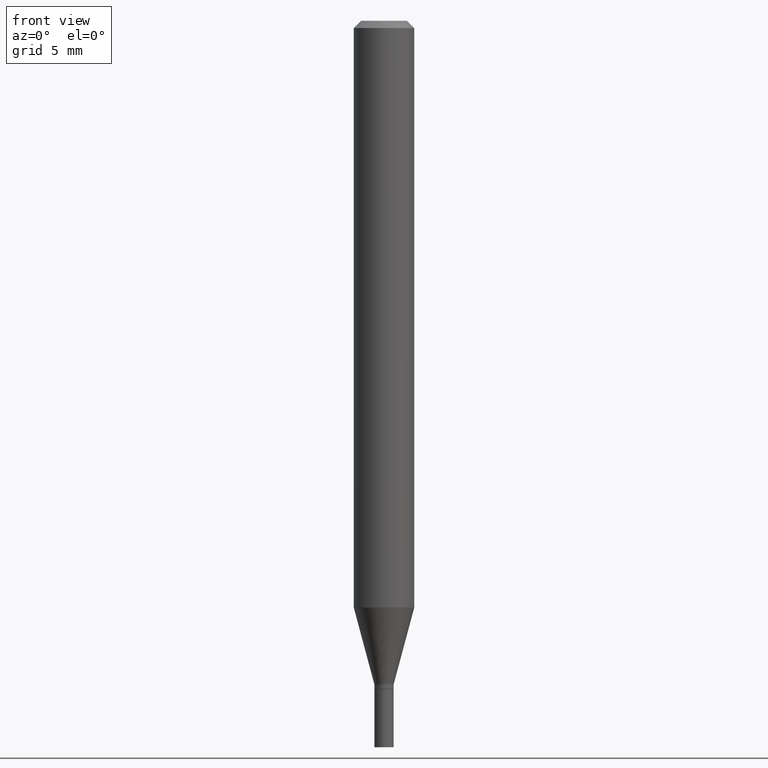
[diagram: clean part render]
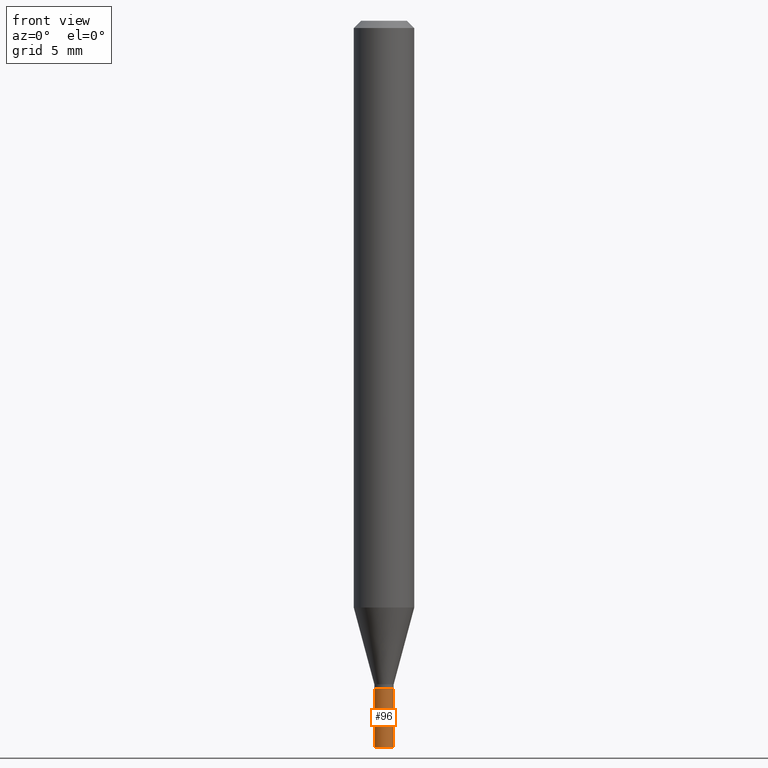
[diagram: same view with one face highlighted and labeled with its STEP entity id]
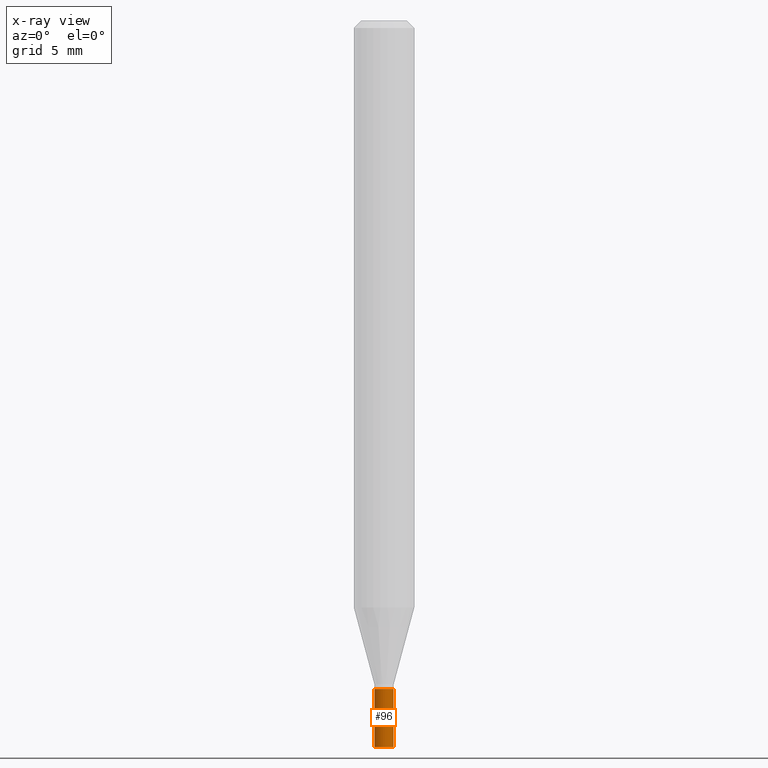
[diagram: x-ray of the same camera — body ghosted, the highlighted face saturated]
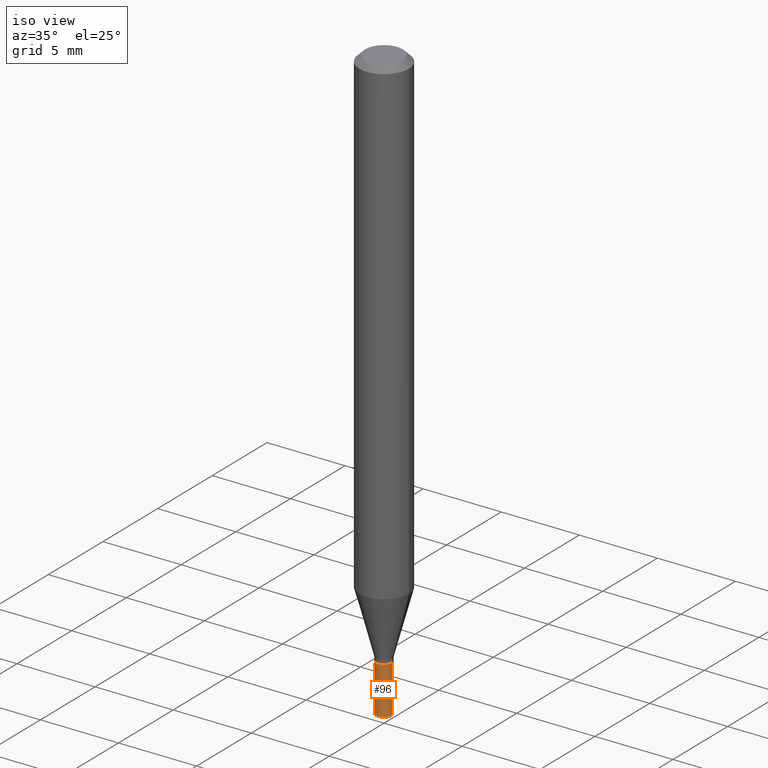
[diagram: same view with one face highlighted and labeled with its STEP entity id]
A machine part, front view. The second image highlights one B-rep face of the part: STEP entity #96.
The next image is the same camera in x-ray: the body ghosted, the highlighted face saturated — about 0% of this face is hidden behind the body in this view.
A second angle (iso view) of the same face is appended — the face is thin or edge-on in the first view.
In plain terms, the highlighted cylindrical surface (edge-blend (fillet) strip) has radius 0.508 mm, axis along (-0, 0, 1).
Its self-contained STEP definition (entity closure, byte-faithful):
#9 = ORIENTED_EDGE ( 'NONE', *, *, #161, .T. ) ;
#16 = VERTEX_POINT ( 'NONE', #73 ) ;
#31 = CARTESIAN_POINT ( 'NONE',  ( -0.02000000000000000042, -4.885624580782109696E-15, -1.380000000000000115 ) ) ;
#44 = DIRECTION ( 'NONE',  ( -2.445468806185136597E-29, 3.491481338843145583E-15, 1.000000000000000000 ) ) ;
#45 = ORIENTED_EDGE ( 'NONE', *, *, #398, .T. ) ;
#47 = VECTOR ( 'NONE', #131, 39.37007874015748143 ) ;
#73 = CARTESIAN_POINT ( 'NONE',  ( 0.02000000000000000042, -5.376881261818443984E-15, -1.500000000000000222 ) ) ;
#80 = CARTESIAN_POINT ( 'NONE',  ( -0.02000000000000000042, -4.885624580782109696E-15, -1.500000000000000222 ) ) ;
#81 = CYLINDRICAL_SURFACE ( 'NONE', #366, 0.02000000000000000042 ) ;
#89 = CARTESIAN_POINT ( 'NONE',  ( 0.02000000000000000042, -4.957903501157267351E-15, -1.380000000000000115 ) ) ;
#96 = ADVANCED_FACE ( 'NONE', ( #448 ), #81, .T. ) ;
#100 = VECTOR ( 'NONE', #425, 39.37007874015748143 ) ;
#107 = VERTEX_POINT ( 'NONE', #89 ) ;
#126 = CIRCLE ( 'NONE', #133, 0.02000000000000000042 ) ;
#131 = DIRECTION ( 'NONE',  ( -2.445468806185136877E-29, 3.491481338843145188E-15, 1.000000000000000000 ) ) ;
#133 = AXIS2_PLACEMENT_3D ( 'NONE', #411, #223, #188 ) ;
#155 = DIRECTION ( 'NONE',  ( 1.000000000000000000, -6.982962677686265922E-15, 4.876176775795935793E-29 ) ) ;
#156 = ORIENTED_EDGE ( 'NONE', *, *, #464, .F. ) ;
#157 = AXIS2_PLACEMENT_3D ( 'NONE', #450, #452, #264 ) ;
#161 = EDGE_CURVE ( 'NONE', #359, #16, #244, .T. ) ;
#170 = LINE ( 'NONE', #245, #47 ) ;
#188 = DIRECTION ( 'NONE',  ( 1.000000000000000000, -6.982962677686284065E-15, 0.000000000000000000 ) ) ;
#223 = DIRECTION ( 'NONE',  ( -2.445468806185136597E-29, 3.491481338843145583E-15, 1.000000000000000000 ) ) ;
#240 = LINE ( 'NONE', #320, #100 ) ;
#244 = CIRCLE ( 'NONE', #157, 0.02000000000000000042 ) ;
#245 = CARTESIAN_POINT ( 'NONE',  ( 0.02000000000000000042, -1.396592535537253145E-16, 9.752353551591871936E-31 ) ) ;
#264 = DIRECTION ( 'NONE',  ( 1.000000000000000000, -6.982962677686284065E-15, 0.000000000000000000 ) ) ;
#320 = CARTESIAN_POINT ( 'NONE',  ( -0.02000000000000000042, 1.421085471520200401E-16, -9.837870180509812545E-31 ) ) ;
#351 = EDGE_CURVE ( 'NONE', #455, #107, #126, .T. ) ;
#359 = VERTEX_POINT ( 'NONE', #80 ) ;
#366 = AXIS2_PLACEMENT_3D ( 'NONE', #409, #44, #155 ) ;
#368 = EDGE_LOOP ( 'NONE', ( #156, #9, #45, #374 ) ) ;
#374 = ORIENTED_EDGE ( 'NONE', *, *, #351, .F. ) ;
#398 = EDGE_CURVE ( 'NONE', #16, #107, #170, .T. ) ;
#409 = CARTESIAN_POINT ( 'NONE',  ( 0.000000000000000000, 0.000000000000000000, 0.000000000000000000 ) ) ;
#411 = CARTESIAN_POINT ( 'NONE',  ( 3.374746952535488593E-29, -4.818244247603541543E-15, -1.380000000000000115 ) ) ;
#425 = DIRECTION ( 'NONE',  ( -2.445468806185136877E-29, 3.491481338843145188E-15, 1.000000000000000000 ) ) ;
#448 = FACE_OUTER_BOUND ( 'NONE', #368, .T. ) ;
#450 = CARTESIAN_POINT ( 'NONE',  ( 3.668203209277704895E-29, -5.237222008264718177E-15, -1.500000000000000222 ) ) ;
#452 = DIRECTION ( 'NONE',  ( -2.445468806185136597E-29, 3.491481338843145583E-15, 1.000000000000000000 ) ) ;
#455 = VERTEX_POINT ( 'NONE', #31 ) ;
#464 = EDGE_CURVE ( 'NONE', #359, #455, #240, .T. ) ;